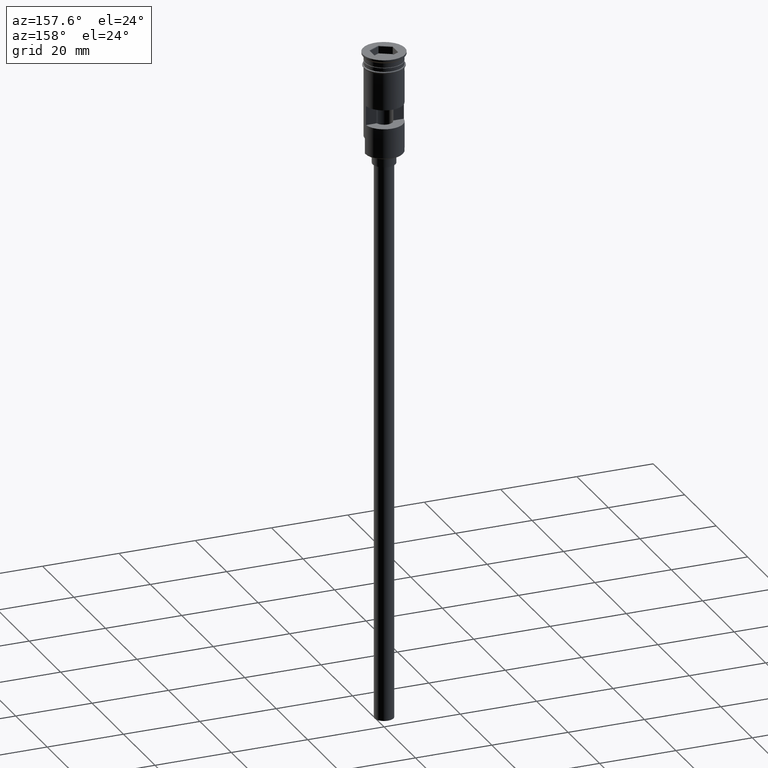
[diagram: clean part render]
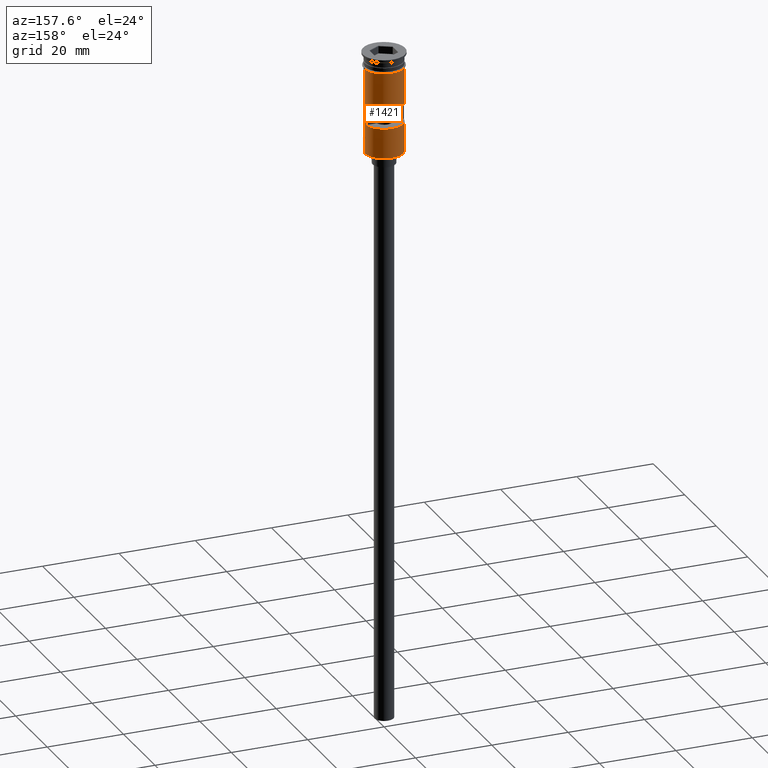
[diagram: same view with one face highlighted and labeled with its STEP entity id]
A machine part, auxiliary view. The second image highlights one B-rep face of the part: STEP entity #1421.
In plain terms, the highlighted cylindrical surface (edge-blend (fillet) strip) has radius 5 mm, axis along (-0, -0, 1).
Its self-contained STEP definition (entity closure, byte-faithful):
#3 = EDGE_CURVE ( 'NONE', #298, #1211, #142, .T. ) ;
#66 = EDGE_LOOP ( 'NONE', ( #170, #332, #304, #810, #1202, #1000 ) ) ;
#84 = EDGE_CURVE ( 'NONE', #1496, #1411, #686, .T. ) ;
#85 = CARTESIAN_POINT ( 'NONE',  ( 0.000000000000000000, 0.000000000000000000, -18.50000000000000355 ) ) ;
#140 = EDGE_CURVE ( 'NONE', #848, #376, #1424, .T. ) ;
#142 = LINE ( 'NONE', #1143, #260 ) ;
#163 = DIRECTION ( 'NONE',  ( -0.000000000000000000, -0.000000000000000000, 1.000000000000000000 ) ) ;
#169 = CARTESIAN_POINT ( 'NONE',  ( 0.000000000000000000, 0.000000000000000000, 0.000000000000000000 ) ) ;
#170 = ORIENTED_EDGE ( 'NONE', *, *, #730, .T. ) ;
#213 = AXIS2_PLACEMENT_3D ( 'NONE', #1517, #535, #1141 ) ;
#220 = CARTESIAN_POINT ( 'NONE',  ( 4.963869458396339418, 0.5999999999999998668, -13.49999999999999822 ) ) ;
#223 = EDGE_CURVE ( 'NONE', #1518, #1211, #1108, .T. ) ;
#260 = VECTOR ( 'NONE', #881, 1000.000000000000000 ) ;
#279 = DIRECTION ( 'NONE',  ( -0.000000000000000000, -0.000000000000000000, 1.000000000000000000 ) ) ;
#298 = VERTEX_POINT ( 'NONE', #653 ) ;
#304 = ORIENTED_EDGE ( 'NONE', *, *, #223, .F. ) ;
#316 = CARTESIAN_POINT ( 'NONE',  ( 4.999999999999993783, 6.123233995736758394E-16, -26.50000000000000000 ) ) ;
#332 = ORIENTED_EDGE ( 'NONE', *, *, #3, .T. ) ;
#369 = CARTESIAN_POINT ( 'NONE',  ( 4.963869458396339418, 0.5999999999999998668, -18.50000000000000355 ) ) ;
#376 = VERTEX_POINT ( 'NONE', #520 ) ;
#398 = LINE ( 'NONE', #1504, #954 ) ;
#408 = EDGE_LOOP ( 'NONE', ( #480, #1147, #625, #1379 ) ) ;
#432 = AXIS2_PLACEMENT_3D ( 'NONE', #969, #1480, #1463 ) ;
#440 = DIRECTION ( 'NONE',  ( -0.000000000000000000, -0.000000000000000000, 1.000000000000000000 ) ) ;
#480 = ORIENTED_EDGE ( 'NONE', *, *, #1229, .F. ) ;
#491 = VECTOR ( 'NONE', #1232, 1000.000000000000000 ) ;
#520 = CARTESIAN_POINT ( 'NONE',  ( 4.999999999999996447, 6.123233995736761352E-16, -22.30000000000001137 ) ) ;
#534 = VERTEX_POINT ( 'NONE', #220 ) ;
#535 = DIRECTION ( 'NONE',  ( -0.000000000000000000, -3.942553354492746489E-16, -1.000000000000000000 ) ) ;
#544 = CARTESIAN_POINT ( 'NONE',  ( -4.963869458396339418, 0.5999999999999998668, -13.49999999999999822 ) ) ;
#569 = CIRCLE ( 'NONE', #213, 4.999999999999996447 ) ;
#581 = CARTESIAN_POINT ( 'NONE',  ( 4.999999999999999112, 0.000000000000000000, -3.799999999999998934 ) ) ;
#625 = ORIENTED_EDGE ( 'NONE', *, *, #84, .F. ) ;
#653 = CARTESIAN_POINT ( 'NONE',  ( -4.999999999999993783, 0.000000000000000000, -22.30000000000001137 ) ) ;
#654 = FACE_BOUND ( 'NONE', #408, .T. ) ;
#661 = DIRECTION ( 'NONE',  ( -0.000000000000000000, -0.000000000000000000, 1.000000000000000000 ) ) ;
#686 = LINE ( 'NONE', #915, #1522 ) ;
#730 = EDGE_CURVE ( 'NONE', #1348, #298, #398, .T. ) ;
#771 = LINE ( 'NONE', #1271, #951 ) ;
#806 = VERTEX_POINT ( 'NONE', #369 ) ;
#810 = ORIENTED_EDGE ( 'NONE', *, *, #1416, .F. ) ;
#848 = VERTEX_POINT ( 'NONE', #963 ) ;
#857 = AXIS2_PLACEMENT_3D ( 'NONE', #904, #1384, #1023 ) ;
#881 = DIRECTION ( 'NONE',  ( -0.000000000000000000, -0.000000000000000000, 1.000000000000000000 ) ) ;
#903 = VECTOR ( 'NONE', #1305, 1000.000000000000000 ) ;
#904 = CARTESIAN_POINT ( 'NONE',  ( 0.000000000000000000, 0.000000000000000000, -26.30000000000000071 ) ) ;
#915 = CARTESIAN_POINT ( 'NONE',  ( -4.963869458396339418, 0.5999999999999998668, 0.000000000000000000 ) ) ;
#935 = CARTESIAN_POINT ( 'NONE',  ( -4.963869458396339418, 0.5999999999999998668, -18.50000000000000355 ) ) ;
#940 = DIRECTION ( 'NONE',  ( 0.000000000000000000, 0.000000000000000000, 1.000000000000000000 ) ) ;
#951 = VECTOR ( 'NONE', #163, 1000.000000000000000 ) ;
#954 = VECTOR ( 'NONE', #279, 1000.000000000000000 ) ;
#963 = CARTESIAN_POINT ( 'NONE',  ( 4.999999999999993783, 6.123233995736758394E-16, -26.30000000000000071 ) ) ;
#969 = CARTESIAN_POINT ( 'NONE',  ( 0.000000000000000000, 0.000000000000000000, -3.799999999999998934 ) ) ;
#983 = AXIS2_PLACEMENT_3D ( 'NONE', #85, #940, #1435 ) ;
#1000 = ORIENTED_EDGE ( 'NONE', *, *, #1319, .T. ) ;
#1007 = LINE ( 'NONE', #1341, #491 ) ;
#1023 = DIRECTION ( 'NONE',  ( -1.000000000000000000, 0.000000000000000000, 0.000000000000000000 ) ) ;
#1108 = CIRCLE ( 'NONE', #432, 4.999999999999999112 ) ;
#1136 = EDGE_CURVE ( 'NONE', #806, #1496, #1377, .T. ) ;
#1141 = DIRECTION ( 'NONE',  ( 0.000000000000000000, -1.000000000000000000, 3.469446951953616654E-16 ) ) ;
#1143 = CARTESIAN_POINT ( 'NONE',  ( -4.999999999999996447, 6.123233995736762338E-16, 0.000000000000000000 ) ) ;
#1147 = ORIENTED_EDGE ( 'NONE', *, *, #1393, .F. ) ;
#1151 = FACE_OUTER_BOUND ( 'NONE', #66, .T. ) ;
#1158 = CARTESIAN_POINT ( 'NONE',  ( -4.999999999999993783, 0.000000000000000000, -26.30000000000000071 ) ) ;
#1202 = ORIENTED_EDGE ( 'NONE', *, *, #140, .F. ) ;
#1211 = VERTEX_POINT ( 'NONE', #1361 ) ;
#1229 = EDGE_CURVE ( 'NONE', #534, #806, #1007, .T. ) ;
#1232 = DIRECTION ( 'NONE',  ( 0.000000000000000000, 0.000000000000000000, -1.000000000000000000 ) ) ;
#1271 = CARTESIAN_POINT ( 'NONE',  ( 4.999999999999996447, 0.000000000000000000, 0.000000000000000000 ) ) ;
#1305 = DIRECTION ( 'NONE',  ( -0.000000000000000000, -0.000000000000000000, 1.000000000000000000 ) ) ;
#1319 = EDGE_CURVE ( 'NONE', #848, #1348, #1501, .T. ) ;
#1341 = CARTESIAN_POINT ( 'NONE',  ( 4.963869458396339418, 0.5999999999999998668, 0.000000000000000000 ) ) ;
#1348 = VERTEX_POINT ( 'NONE', #1158 ) ;
#1361 = CARTESIAN_POINT ( 'NONE',  ( -4.999999999999999112, 6.123233995736765296E-16, -3.799999999999998934 ) ) ;
#1377 = CIRCLE ( 'NONE', #983, 4.999999999999996447 ) ;
#1379 = ORIENTED_EDGE ( 'NONE', *, *, #1136, .F. ) ;
#1384 = DIRECTION ( 'NONE',  ( 0.000000000000000000, 0.000000000000000000, 1.000000000000000000 ) ) ;
#1393 = EDGE_CURVE ( 'NONE', #1411, #534, #569, .T. ) ;
#1400 = CYLINDRICAL_SURFACE ( 'NONE', #1549, 4.999999999999996447 ) ;
#1411 = VERTEX_POINT ( 'NONE', #544 ) ;
#1416 = EDGE_CURVE ( 'NONE', #376, #1518, #771, .T. ) ;
#1421 = ADVANCED_FACE ( 'NONE', ( #654, #1151 ), #1400, .T. ) ;
#1424 = LINE ( 'NONE', #316, #903 ) ;
#1435 = DIRECTION ( 'NONE',  ( -1.000000000000000000, 0.000000000000000000, 0.000000000000000000 ) ) ;
#1463 = DIRECTION ( 'NONE',  ( 1.000000000000000000, 0.000000000000000000, 0.000000000000000000 ) ) ;
#1480 = DIRECTION ( 'NONE',  ( -0.000000000000000000, -0.000000000000000000, 1.000000000000000000 ) ) ;
#1496 = VERTEX_POINT ( 'NONE', #935 ) ;
#1501 = CIRCLE ( 'NONE', #857, 4.999999999999996447 ) ;
#1504 = CARTESIAN_POINT ( 'NONE',  ( -4.999999999999993783, 0.000000000000000000, -26.50000000000000000 ) ) ;
#1517 = CARTESIAN_POINT ( 'NONE',  ( 0.000000000000000000, 0.000000000000000000, -13.49999999999999822 ) ) ;
#1518 = VERTEX_POINT ( 'NONE', #581 ) ;
#1522 = VECTOR ( 'NONE', #440, 1000.000000000000000 ) ;
#1548 = DIRECTION ( 'NONE',  ( 1.000000000000000000, 0.000000000000000000, 0.000000000000000000 ) ) ;
#1549 = AXIS2_PLACEMENT_3D ( 'NONE', #169, #661, #1548 ) ;